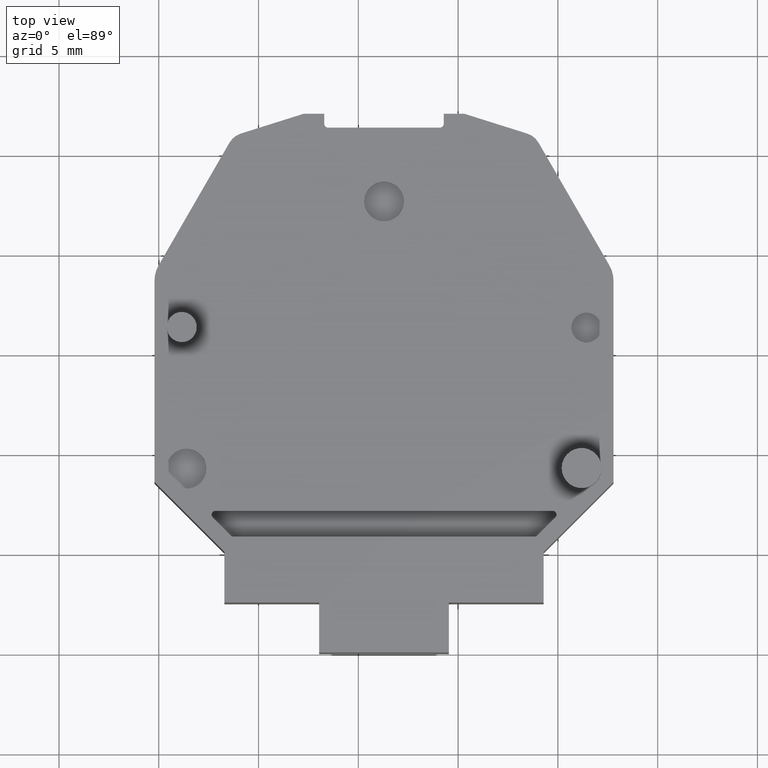
[diagram: clean part render]
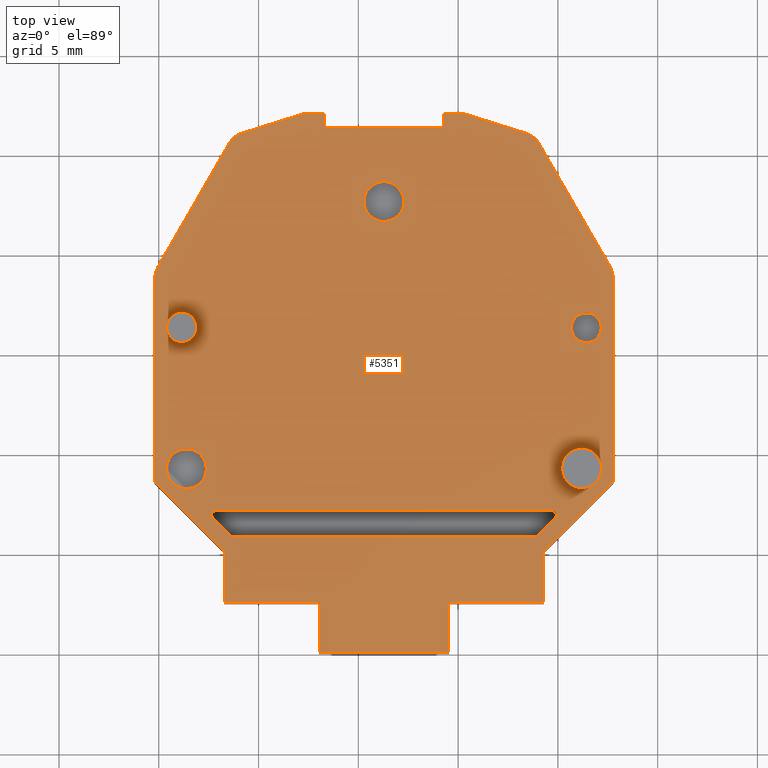
[diagram: same view with one face highlighted and labeled with its STEP entity id]
A machine part, top view. The second image highlights one B-rep face of the part: STEP entity #5351.
In plain terms, the highlighted planar face has unit normal (0, 0, 1).
Its self-contained STEP definition (entity closure, byte-faithful):
#47 = DIRECTION ( 'NONE',  ( 0.0000000000000000000, -1.000000000000000000, -0.0000000000000000000 ) ) ;
#50 = CARTESIAN_POINT ( 'NONE',  ( 301.4252887473445500, 446.2741209569410300, -25.33000000000000200 ) ) ;
#52 = LINE ( 'NONE', #56, #1726 ) ;
#53 = DIRECTION ( 'NONE',  ( -0.0000000000000000000, -0.0000000000000000000, -1.000000000000000000 ) ) ;
#56 = CARTESIAN_POINT ( 'NONE',  ( 283.2859378434519600, 448.6419330427179900, -25.33000000000000200 ) ) ;
#78 = CARTESIAN_POINT ( 'NONE',  ( 288.0359378434520700, 448.6419330427179900, -25.33000000000000200 ) ) ;
#87 = DIRECTION ( 'NONE',  ( 0.0000000000000000000, -1.000000000000000000, -0.0000000000000000000 ) ) ;
#88 = LINE ( 'NONE', #78, #1739 ) ;
#89 = LINE ( 'NONE', #133, #221 ) ;
#91 = DIRECTION ( 'NONE',  ( 1.000000000000000000, 0.0000000000000000000, -0.0000000000000000000 ) ) ;
#93 = CARTESIAN_POINT ( 'NONE',  ( 301.2859378434515100, 430.0003766282130800, -25.33000000000000200 ) ) ;
#98 = DIRECTION ( 'NONE',  ( -1.000000000000000000, 0.0000000000000000000, 0.0000000000000000000 ) ) ;
#104 = DIRECTION ( 'NONE',  ( 0.0000000000000000000, 0.0000000000000000000, -1.000000000000000000 ) ) ;
#110 = DIRECTION ( 'NONE',  ( 1.000000000000000000, 0.0000000000000000000, -0.0000000000000000000 ) ) ;
#111 = DIRECTION ( 'NONE',  ( 0.0000000000000000000, 0.0000000000000000000, -1.000000000000000000 ) ) ;
#112 = DIRECTION ( 'NONE',  ( -1.000000000000000000, 0.0000000000000000000, 0.0000000000000000000 ) ) ;
#116 = CARTESIAN_POINT ( 'NONE',  ( 298.1630294374650100, 455.0509690692700800, -25.33000000000000200 ) ) ;
#125 = DIRECTION ( 'NONE',  ( 1.000000000000000000, 0.0000000000000000000, 0.0000000000000000000 ) ) ;
#127 = LINE ( 'NONE', #93, #230 ) ;
#129 = CARTESIAN_POINT ( 'NONE',  ( 281.1465869395589700, 446.2741209569480200, -25.33000000000000200 ) ) ;
#133 = CARTESIAN_POINT ( 'NONE',  ( 301.2859378434515100, 432.5003766282130200, -25.33000000000000200 ) ) ;
#134 = LINE ( 'NONE', #141, #1753 ) ;
#138 = DIRECTION ( 'NONE',  ( 1.000000000000000000, 0.0000000000000000000, -0.0000000000000000000 ) ) ;
#141 = CARTESIAN_POINT ( 'NONE',  ( 294.2798336156394600, 457.4763382100359800, -25.33000000000000200 ) ) ;
#142 = DIRECTION ( 'NONE',  ( -1.390694383119340700E-005, -0.9999999999032984600, -0.0000000000000000000 ) ) ;
#157 = CARTESIAN_POINT ( 'NONE',  ( 301.2859378434515100, 432.5003766282130200, -25.33000000000000200 ) ) ;
#164 = AXIS2_PLACEMENT_3D ( 'NONE', #2394, #2419, #2395 ) ;
#165 = CIRCLE ( 'NONE', #172, 1.499999999999945800 ) ;
#171 = CIRCLE ( 'NONE', #164, 0.1999999999999779700 ) ;
#172 = AXIS2_PLACEMENT_3D ( 'NONE', #2412, #2387, #2400 ) ;
#174 = AXIS2_PLACEMENT_3D ( 'NONE', #116, #111, #112 ) ;
#216 = ORIENTED_EDGE ( 'NONE', *, *, #1404, .T. ) ;
#217 = ORIENTED_EDGE ( 'NONE', *, *, #1361, .T. ) ;
#219 = CIRCLE ( 'NONE', #1784, 0.9999999999872333200 ) ;
#221 = VECTOR ( 'NONE', #91, 1000.000000000000000 ) ;
#223 = CIRCLE ( 'NONE', #225, 0.7500000000004170000 ) ;
#225 = AXIS2_PLACEMENT_3D ( 'NONE', #129, #104, #98 ) ;
#227 = CIRCLE ( 'NONE', #174, 0.9999999999999453800 ) ;
#230 = VECTOR ( 'NONE', #110, 1000.000000000000000 ) ;
#241 = ORIENTED_EDGE ( 'NONE', *, *, #1358, .T. ) ;
#267 = ORIENTED_EDGE ( 'NONE', *, *, #1431, .T. ) ;
#574 = DIRECTION ( 'NONE',  ( -1.000000000000000000, 0.0000000000000000000, 0.0000000000000000000 ) ) ;
#587 = CARTESIAN_POINT ( 'NONE',  ( 282.8478802416394700, 436.8967608090039800, -25.33000000000000200 ) ) ;
#598 = DIRECTION ( 'NONE',  ( 0.0000000000000000000, 0.0000000000000000000, -1.000000000000000000 ) ) ;
#660 = DIRECTION ( 'NONE',  ( -0.0000000000000000000, -0.0000000000000000000, -1.000000000000000000 ) ) ;
#661 = DIRECTION ( 'NONE',  ( 1.000000000000000000, 0.0000000000000000000, 0.0000000000000000000 ) ) ;
#662 = DIRECTION ( 'NONE',  ( -1.000000000000000000, 0.0000000000000000000, 0.0000000000000000000 ) ) ;
#670 = CARTESIAN_POINT ( 'NONE',  ( 301.4252887473445500, 446.2741209569410300, -25.33000000000000200 ) ) ;
#687 = DIRECTION ( 'NONE',  ( 0.0000000000000000000, 0.0000000000000000000, -1.000000000000000000 ) ) ;
#696 = CARTESIAN_POINT ( 'NONE',  ( 281.1465869395589700, 446.2741209569480200, -25.33000000000000200 ) ) ;
#954 = CARTESIAN_POINT ( 'NONE',  ( 295.3058080792579900, 457.0003766282129600, -25.33000000000000200 ) ) ;
#959 = DIRECTION ( 'NONE',  ( -1.000000000000000000, -6.214135429438520400E-014, -0.0000000000000000000 ) ) ;
#995 = LINE ( 'NONE', #954, #3494 ) ;
#1014 = LINE ( 'NONE', #157, #1733 ) ;
#1076 = VECTOR ( 'NONE', #2440, 1000.000000000000000 ) ;
#1077 = AXIS2_PLACEMENT_3D ( 'NONE', #2532, #2523, #2540 ) ;
#1078 = VECTOR ( 'NONE', #2008, 1000.000000000000100 ) ;
#1082 = VECTOR ( 'NONE', #1992, 1000.000000000000000 ) ;
#1083 = AXIS2_PLACEMENT_3D ( 'NONE', #2312, #2289, #2335 ) ;
#1085 = AXIS2_PLACEMENT_3D ( 'NONE', #2455, #2504, #2490 ) ;
#1089 = VECTOR ( 'NONE', #2495, 1000.000000000000000 ) ;
#1096 = VECTOR ( 'NONE', #2020, 1000.000000000000000 ) ;
#1102 = AXIS2_PLACEMENT_3D ( 'NONE', #2506, #2507, #2511 ) ;
#1105 = VECTOR ( 'NONE', #2545, 1000.000000000000000 ) ;
#1106 = CIRCLE ( 'NONE', #1077, 0.1999999999999779700 ) ;
#1108 = VECTOR ( 'NONE', #2478, 1000.000000000000100 ) ;
#1112 = CIRCLE ( 'NONE', #1127, 0.9999999999872333200 ) ;
#1114 = AXIS2_PLACEMENT_3D ( 'NONE', #2547, #2542, #2534 ) ;
#1117 = VECTOR ( 'NONE', #2463, 1000.000000000000100 ) ;
#1119 = VECTOR ( 'NONE', #2483, 1000.000000000000000 ) ;
#1120 = CIRCLE ( 'NONE', #1085, 1.000000000000000900 ) ;
#1122 = AXIS2_PLACEMENT_3D ( 'NONE', #2520, #2521, #2526 ) ;
#1123 = CIRCLE ( 'NONE', #1125, 1.000000000000000900 ) ;
#1124 = VECTOR ( 'NONE', #2544, 1000.000000000000000 ) ;
#1125 = AXIS2_PLACEMENT_3D ( 'NONE', #2002, #2028, #2026 ) ;
#1126 = CIRCLE ( 'NONE', #1083, 0.9999999999872333200 ) ;
#1127 = AXIS2_PLACEMENT_3D ( 'NONE', #2498, #2488, #2508 ) ;
#1128 = VECTOR ( 'NONE', #1996, 1000.000000000000100 ) ;
#1129 = VECTOR ( 'NONE', #2438, 1000.000000000000100 ) ;
#1130 = VECTOR ( 'NONE', #2021, 1000.000000000000200 ) ;
#1131 = VECTOR ( 'NONE', #1978, 1000.000000000000000 ) ;
#1133 = CIRCLE ( 'NONE', #1114, 0.1999999999999779700 ) ;
#1137 = CIRCLE ( 'NONE', #1102, 0.1999999999999779700 ) ;
#1138 = CIRCLE ( 'NONE', #1122, 0.9999999999872333200 ) ;
#1221 = EDGE_CURVE ( 'NONE', #3297, #3340, #2732, .T. ) ;
#1269 = EDGE_CURVE ( 'NONE', #3350, #3374, #995, .T. ) ;
#1308 = EDGE_CURVE ( 'NONE', #4462, #3350, #4337, .T. ) ;
#1314 = EDGE_CURVE ( 'NONE', #3363, #3354, #3472, .T. ) ;
#1332 = EDGE_CURVE ( 'NONE', #4493, #4456, #1014, .T. ) ;
#1339 = EDGE_CURVE ( 'NONE', #3340, #3370, #134, .T. ) ;
#1350 = EDGE_CURVE ( 'NONE', #4495, #4493, #52, .T. ) ;
#1353 = EDGE_CURVE ( 'NONE', #4456, #4475, #88, .T. ) ;
#1355 = EDGE_CURVE ( 'NONE', #4516, #4513, #1760, .T. ) ;
#1358 = EDGE_CURVE ( 'NONE', #4474, #4459, #89, .T. ) ;
#1360 = EDGE_CURVE ( 'NONE', #4448, #4487, #223, .T. ) ;
#1361 = EDGE_CURVE ( 'NONE', #4475, #4478, #127, .T. ) ;
#1366 = EDGE_CURVE ( 'NONE', #3377, #3348, #227, .T. ) ;
#1373 = EDGE_CURVE ( 'NONE', #4469, #4453, #165, .T. ) ;
#1382 = EDGE_CURVE ( 'NONE', #4468, #4462, #171, .T. ) ;
#1388 = EDGE_CURVE ( 'NONE', #4478, #4474, #2443, .T. ) ;
#1392 = EDGE_CURVE ( 'NONE', #4476, #4499, #2430, .T. ) ;
#1395 = EDGE_CURVE ( 'NONE', #4471, #4491, #2446, .T. ) ;
#1397 = EDGE_CURVE ( 'NONE', #4447, #4458, #2439, .T. ) ;
#1398 = EDGE_CURVE ( 'NONE', #4500, #4463, #1120, .T. ) ;
#1401 = EDGE_CURVE ( 'NONE', #4514, #4486, #1112, .T. ) ;
#1402 = EDGE_CURVE ( 'NONE', #4459, #4476, #2513, .T. ) ;
#1404 = EDGE_CURVE ( 'NONE', #4499, #3354, #2480, .T. ) ;
#1407 = EDGE_CURVE ( 'NONE', #3363, #3348, #2487, .T. ) ;
#1412 = EDGE_CURVE ( 'NONE', #3370, #4483, #1137, .T. ) ;
#1414 = EDGE_CURVE ( 'NONE', #4437, #4471, #1133, .T. ) ;
#1415 = EDGE_CURVE ( 'NONE', #4491, #4447, #2479, .T. ) ;
#1416 = EDGE_CURVE ( 'NONE', #4483, #4468, #2529, .T. ) ;
#1418 = EDGE_CURVE ( 'NONE', #4458, #4482, #1106, .T. ) ;
#1420 = EDGE_CURVE ( 'NONE', #4441, #4477, #1138, .T. ) ;
#1423 = EDGE_CURVE ( 'NONE', #4443, #4554, #1123, .T. ) ;
#1424 = EDGE_CURVE ( 'NONE', #4455, #4495, #1980, .T. ) ;
#1427 = EDGE_CURVE ( 'NONE', #3377, #3297, #2023, .T. ) ;
#1431 = EDGE_CURVE ( 'NONE', #4492, #4437, #2018, .T. ) ;
#1432 = EDGE_CURVE ( 'NONE', #3374, #4463, #2025, .T. ) ;
#1433 = EDGE_CURVE ( 'NONE', #4469, #4455, #2011, .T. ) ;
#1436 = EDGE_CURVE ( 'NONE', #4500, #4453, #1986, .T. ) ;
#1450 = ORIENTED_EDGE ( 'NONE', *, *, #1366, .F. ) ;
#1452 = ORIENTED_EDGE ( 'NONE', *, *, #1353, .T. ) ;
#1453 = ORIENTED_EDGE ( 'NONE', *, *, #1412, .T. ) ;
#1454 = ORIENTED_EDGE ( 'NONE', *, *, #4960, .T. ) ;
#1455 = ORIENTED_EDGE ( 'NONE', *, *, #1339, .T. ) ;
#1456 = ORIENTED_EDGE ( 'NONE', *, *, #1407, .T. ) ;
#1457 = ORIENTED_EDGE ( 'NONE', *, *, #1382, .T. ) ;
#1459 = ORIENTED_EDGE ( 'NONE', *, *, #1436, .T. ) ;
#1460 = ORIENTED_EDGE ( 'NONE', *, *, #1221, .T. ) ;
#1461 = ORIENTED_EDGE ( 'NONE', *, *, #1360, .T. ) ;
#1462 = ORIENTED_EDGE ( 'NONE', *, *, #4957, .T. ) ;
#1463 = ORIENTED_EDGE ( 'NONE', *, *, #1402, .T. ) ;
#1464 = ORIENTED_EDGE ( 'NONE', *, *, #1416, .T. ) ;
#1465 = ORIENTED_EDGE ( 'NONE', *, *, #1398, .F. ) ;
#1467 = ORIENTED_EDGE ( 'NONE', *, *, #1388, .T. ) ;
#1468 = ORIENTED_EDGE ( 'NONE', *, *, #1350, .T. ) ;
#1469 = ORIENTED_EDGE ( 'NONE', *, *, #1269, .T. ) ;
#1471 = ORIENTED_EDGE ( 'NONE', *, *, #1332, .T. ) ;
#1472 = ORIENTED_EDGE ( 'NONE', *, *, #1314, .F. ) ;
#1473 = ORIENTED_EDGE ( 'NONE', *, *, #1392, .T. ) ;
#1475 = ORIENTED_EDGE ( 'NONE', *, *, #1308, .T. ) ;
#1477 = ORIENTED_EDGE ( 'NONE', *, *, #1355, .T. ) ;
#1480 = ORIENTED_EDGE ( 'NONE', *, *, #1427, .T. ) ;
#1481 = ORIENTED_EDGE ( 'NONE', *, *, #1432, .T. ) ;
#1515 = EDGE_LOOP ( 'NONE', ( #1454, #1461 ) ) ;
#1516 = EDGE_LOOP ( 'NONE', ( #2918, #2935, #267, #2936, #2909, #2902, #2931 ) ) ;
#1527 = EDGE_LOOP ( 'NONE', ( #1462, #1477 ) ) ;
#1533 = EDGE_LOOP ( 'NONE', ( #2865, #2941 ) ) ;
#1535 = EDGE_LOOP ( 'NONE', ( #2928, #2940, #2926, #1468, #1471, #1452, #217, #1467, #241, #1463, #1473, #216, #1472, #1456, #1450, #1480, #1460, #1455, #1453, #1464, #1457, #1475, #1469, #1481, #1465, #1459 ) ) ;
#1539 = EDGE_LOOP ( 'NONE', ( #2929, #2921 ) ) ;
#1542 = EDGE_LOOP ( 'NONE', ( #2924, #2930 ) ) ;
#1666 = VECTOR ( 'NONE', #2768, 1000.000000000000000 ) ;
#1726 = VECTOR ( 'NONE', #87, 1000.000000000000000 ) ;
#1730 = VECTOR ( 'NONE', #2453, 1000.000000000000000 ) ;
#1733 = VECTOR ( 'NONE', #138, 1000.000000000000000 ) ;
#1736 = AXIS2_PLACEMENT_3D ( 'NONE', #50, #53, #125 ) ;
#1737 = AXIS2_PLACEMENT_3D ( 'NONE', #4370, #4363, #4394 ) ;
#1739 = VECTOR ( 'NONE', #47, 1000.000000000000000 ) ;
#1753 = VECTOR ( 'NONE', #142, 1000.000000000000000 ) ;
#1760 = CIRCLE ( 'NONE', #1736, 0.7500000000004170000 ) ;
#1768 = AXIS2_PLACEMENT_3D ( 'NONE', #587, #598, #574 ) ;
#1775 = CIRCLE ( 'NONE', #1812, 0.7500000000004170000 ) ;
#1784 = AXIS2_PLACEMENT_3D ( 'NONE', #2379, #2362, #2347 ) ;
#1786 = CIRCLE ( 'NONE', #1768, 0.1999999999999779700 ) ;
#1801 = CIRCLE ( 'NONE', #1809, 0.7500000000004170000 ) ;
#1809 = AXIS2_PLACEMENT_3D ( 'NONE', #696, #687, #662 ) ;
#1812 = AXIS2_PLACEMENT_3D ( 'NONE', #670, #660, #661 ) ;
#1978 = DIRECTION ( 'NONE',  ( 1.000000000000000000, 0.0000000000000000000, -0.0000000000000000000 ) ) ;
#1979 = CARTESIAN_POINT ( 'NONE',  ( 279.7859378434514500, 448.6419330427179900, -25.33000000000000200 ) ) ;
#1980 = LINE ( 'NONE', #2019, #1128 ) ;
#1986 = LINE ( 'NONE', #2015, #1096 ) ;
#1992 = DIRECTION ( 'NONE',  ( 0.0000000000000000000, -1.000000000000000000, -0.0000000000000000000 ) ) ;
#1994 = CARTESIAN_POINT ( 'NONE',  ( 298.4637352369695100, 456.0046860200179700, -25.33000000000000200 ) ) ;
#1996 = DIRECTION ( 'NONE',  ( 0.7071067811865474600, -0.7071067811865474600, 0.0000000000000000000 ) ) ;
#2001 = CARTESIAN_POINT ( 'NONE',  ( 301.2859378434515100, 437.0967608090040200, -25.33000000000000200 ) ) ;
#2002 = CARTESIAN_POINT ( 'NONE',  ( 291.2859378434519600, 452.5954399154260800, -25.33000000000000200 ) ) ;
#2008 = DIRECTION ( 'NONE',  ( -0.9537169507481838600, 0.3007057995044094500, 0.0000000000000000000 ) ) ;
#2010 = CARTESIAN_POINT ( 'NONE',  ( 287.2660676076465100, 457.0003766282129600, -25.33000000000000200 ) ) ;
#2011 = LINE ( 'NONE', #1979, #1082 ) ;
#2015 = CARTESIAN_POINT ( 'NONE',  ( 283.5428208456534700, 455.5509690692699700, -25.33000000000000200 ) ) ;
#2018 = LINE ( 'NONE', #2001, #1131 ) ;
#2019 = CARTESIAN_POINT ( 'NONE',  ( 279.7859378434514500, 438.5444896448189500, -25.33000000000000200 ) ) ;
#2020 = DIRECTION ( 'NONE',  ( -0.5000000000000030000, -0.8660254037844369300, 0.0000000000000000000 ) ) ;
#2021 = DIRECTION ( 'NONE',  ( -0.9537169507482248200, -0.3007057995042796100, 0.0000000000000000000 ) ) ;
#2023 = LINE ( 'NONE', #1994, #1078 ) ;
#2025 = LINE ( 'NONE', #2010, #1130 ) ;
#2026 = DIRECTION ( 'NONE',  ( 1.000000000000000000, 0.0000000000000000000, 0.0000000000000000000 ) ) ;
#2028 = DIRECTION ( 'NONE',  ( -0.0000000000000000000, -0.0000000000000000000, -1.000000000000000000 ) ) ;
#2076 = CARTESIAN_POINT ( 'NONE',  ( 295.3058080792579900, 457.0003766282129600, -25.33000000000000200 ) ) ;
#2098 = CARTESIAN_POINT ( 'NONE',  ( 302.5849759491280200, 449.3919330427179400, -25.33000000000000200 ) ) ;
#2103 = CARTESIAN_POINT ( 'NONE',  ( 298.4637352369694600, 456.0046860200179700, -25.33000000000000200 ) ) ;
#2109 = CARTESIAN_POINT ( 'NONE',  ( 294.2798200604076400, 456.5016285961286300, -25.33000000000000200 ) ) ;
#2110 = CARTESIAN_POINT ( 'NONE',  ( 288.2920486904610600, 457.0003766282128500, -25.33000000000000200 ) ) ;
#2117 = CARTESIAN_POINT ( 'NONE',  ( 294.2798269964685000, 457.0003766282129000, -25.33000000000000200 ) ) ;
#2119 = CARTESIAN_POINT ( 'NONE',  ( 299.0290548412494900, 455.5509690692699700, -25.33000000000000200 ) ) ;
#2139 = CARTESIAN_POINT ( 'NONE',  ( 302.7859378434515600, 448.6419330427179900, -25.33000000000000200 ) ) ;
#2140 = CARTESIAN_POINT ( 'NONE',  ( 287.2660676076465100, 457.0003766282126200, -25.33000000000000200 ) ) ;
#2223 = CARTESIAN_POINT ( 'NONE',  ( 279.7859378434514500, 448.6419330427179900, -25.33000000000000200 ) ) ;
#2227 = CARTESIAN_POINT ( 'NONE',  ( 281.8965869395593700, 446.2741209569480200, -25.33000000000000200 ) ) ;
#2228 = CARTESIAN_POINT ( 'NONE',  ( 300.1859378434722900, 439.2072313446179800, -25.33000000000000200 ) ) ;
#2232 = CARTESIAN_POINT ( 'NONE',  ( 294.5359378434520200, 430.0003766282130800, -25.33000000000000200 ) ) ;
#2235 = CARTESIAN_POINT ( 'NONE',  ( 294.0798200604269800, 456.3016313775178800, -25.33000000000000200 ) ) ;
#2236 = CARTESIAN_POINT ( 'NONE',  ( 280.3965869395585200, 446.2741209569480200, -25.33000000000000200 ) ) ;
#2237 = CARTESIAN_POINT ( 'NONE',  ( 282.7064588854023600, 436.7553394527663500, -25.33000000000000200 ) ) ;
#2238 = CARTESIAN_POINT ( 'NONE',  ( 283.6614217099555000, 435.8003766282129700, -25.33000000000000200 ) ) ;
#2239 = CARTESIAN_POINT ( 'NONE',  ( 279.7859378434514500, 438.5444896448189500, -25.33000000000000200 ) ) ;
#2240 = CARTESIAN_POINT ( 'NONE',  ( 302.1859378434467700, 439.2072313446179800, -25.33000000000000200 ) ) ;
#2241 = CARTESIAN_POINT ( 'NONE',  ( 294.5359378434520200, 432.5003766282130200, -25.33000000000000200 ) ) ;
#2244 = CARTESIAN_POINT ( 'NONE',  ( 282.6478802416394800, 436.8967608090039800, -25.33000000000000200 ) ) ;
#2247 = CARTESIAN_POINT ( 'NONE',  ( 299.2859378434519600, 435.0444896448179300, -25.33000000000000200 ) ) ;
#2249 = CARTESIAN_POINT ( 'NONE',  ( 299.8654168015015700, 436.7553394527661200, -25.33000000000000200 ) ) ;
#2251 = CARTESIAN_POINT ( 'NONE',  ( 298.9104539769480200, 435.8003766282129700, -25.33000000000000200 ) ) ;
#2252 = CARTESIAN_POINT ( 'NONE',  ( 282.8478802416394700, 437.0967608090040200, -25.33000000000000200 ) ) ;
#2253 = CARTESIAN_POINT ( 'NONE',  ( 283.2859378434519600, 432.5003766282130200, -25.33000000000000200 ) ) ;
#2257 = CARTESIAN_POINT ( 'NONE',  ( 288.4920486904611000, 456.3016313775170800, -25.33000000000000200 ) ) ;
#2261 = CARTESIAN_POINT ( 'NONE',  ( 284.1081404499333900, 456.0046860200182000, -25.33000000000000200 ) ) ;
#2262 = CARTESIAN_POINT ( 'NONE',  ( 283.5428208456533000, 455.5509690692700200, -25.33000000000000200 ) ) ;
#2263 = CARTESIAN_POINT ( 'NONE',  ( 282.3859378434512500, 439.2072313446219600, -25.33000000000000200 ) ) ;
#2266 = CARTESIAN_POINT ( 'NONE',  ( 283.2859378434519600, 435.0444896448184400, -25.33000000000000200 ) ) ;
#2267 = CARTESIAN_POINT ( 'NONE',  ( 288.0359378434520700, 432.5003766282130200, -25.33000000000000200 ) ) ;
#2270 = CARTESIAN_POINT ( 'NONE',  ( 302.7859378434515600, 438.5444896448179900, -25.33000000000000200 ) ) ;
#2273 = CARTESIAN_POINT ( 'NONE',  ( 299.2859378434519600, 432.5003766282130200, -25.33000000000000200 ) ) ;
#2275 = CARTESIAN_POINT ( 'NONE',  ( 290.2859378434519600, 452.5954399154260800, -25.33000000000000200 ) ) ;
#2276 = CARTESIAN_POINT ( 'NONE',  ( 279.9868997377750500, 449.3919330427179400, -25.33000000000000200 ) ) ;
#2279 = CARTESIAN_POINT ( 'NONE',  ( 288.2920486904610600, 456.5016313775170100, -25.33000000000000200 ) ) ;
#2283 = CARTESIAN_POINT ( 'NONE',  ( 288.0359378434520700, 430.0003766282130800, -25.33000000000000200 ) ) ;
#2284 = CARTESIAN_POINT ( 'NONE',  ( 299.7239954452639900, 437.0967608090040200, -25.33000000000000200 ) ) ;
#2286 = CARTESIAN_POINT ( 'NONE',  ( 280.3859378434767700, 439.2072313446219600, -25.33000000000000200 ) ) ;
#2289 = DIRECTION ( 'NONE',  ( -0.0000000000000000000, -0.0000000000000000000, -1.000000000000000000 ) ) ;
#2312 = CARTESIAN_POINT ( 'NONE',  ( 281.3859378434639800, 439.2072313446219600, -25.33000000000000200 ) ) ;
#2325 = CARTESIAN_POINT ( 'NONE',  ( 292.2859378434519600, 452.5954399154260800, -25.33000000000000200 ) ) ;
#2328 = CARTESIAN_POINT ( 'NONE',  ( 302.1752887473449500, 446.2741209569410300, -25.33000000000000200 ) ) ;
#2330 = CARTESIAN_POINT ( 'NONE',  ( 300.6752887473441000, 446.2741209569410300, -25.33000000000000200 ) ) ;
#2335 = DIRECTION ( 'NONE',  ( 1.000000000000000000, 0.0000000000000000000, 0.0000000000000000000 ) ) ;
#2347 = DIRECTION ( 'NONE',  ( -1.000000000000000000, 0.0000000000000000000, 0.0000000000000000000 ) ) ;
#2362 = DIRECTION ( 'NONE',  ( 0.0000000000000000000, 0.0000000000000000000, -1.000000000000000000 ) ) ;
#2379 = CARTESIAN_POINT ( 'NONE',  ( 301.1859378434595600, 439.2072313446179800, -25.33000000000000200 ) ) ;
#2387 = DIRECTION ( 'NONE',  ( 0.0000000000000000000, 0.0000000000000000000, -1.000000000000000000 ) ) ;
#2394 = CARTESIAN_POINT ( 'NONE',  ( 288.4920486904611000, 456.5016313775170100, -25.33000000000000200 ) ) ;
#2395 = DIRECTION ( 'NONE',  ( -1.000000000000000000, 0.0000000000000000000, 0.0000000000000000000 ) ) ;
#2400 = DIRECTION ( 'NONE',  ( -1.000000000000000000, 0.0000000000000000000, 0.0000000000000000000 ) ) ;
#2412 = CARTESIAN_POINT ( 'NONE',  ( 281.2859378434514500, 448.6419330427179900, -25.33000000000000200 ) ) ;
#2419 = DIRECTION ( 'NONE',  ( 0.0000000000000000000, 0.0000000000000000000, -1.000000000000000000 ) ) ;
#2430 = LINE ( 'NONE', #2458, #1076 ) ;
#2432 = CARTESIAN_POINT ( 'NONE',  ( 299.8654168015014500, 436.7553394527660100, -25.33000000000000200 ) ) ;
#2438 = DIRECTION ( 'NONE',  ( -0.7071067811865474600, 0.7071067811865474600, 0.0000000000000000000 ) ) ;
#2439 = LINE ( 'NONE', #2447, #1129 ) ;
#2440 = DIRECTION ( 'NONE',  ( 0.7071067811864970600, 0.7071067811865979800, 0.0000000000000000000 ) ) ;
#2442 = CARTESIAN_POINT ( 'NONE',  ( 294.5359378434520200, 448.6419330427179900, -25.33000000000000200 ) ) ;
#2443 = LINE ( 'NONE', #2442, #1730 ) ;
#2446 = LINE ( 'NONE', #2432, #1117 ) ;
#2447 = CARTESIAN_POINT ( 'NONE',  ( 283.6614217099555000, 435.8003766282129700, -25.33000000000000200 ) ) ;
#2453 = DIRECTION ( 'NONE',  ( -0.0000000000000000000, 1.000000000000000000, 0.0000000000000000000 ) ) ;
#2455 = CARTESIAN_POINT ( 'NONE',  ( 284.4088462494376000, 455.0509690692700800, -25.33000000000000200 ) ) ;
#2458 = CARTESIAN_POINT ( 'NONE',  ( 299.2859378434519600, 435.0444896448179300, -25.33000000000000200 ) ) ;
#2463 = DIRECTION ( 'NONE',  ( -0.7071067811866913500, -0.7071067811864036900, 0.0000000000000000000 ) ) ;
#2476 = CARTESIAN_POINT ( 'NONE',  ( 299.2859378434519600, 448.6419330427179900, -25.33000000000000200 ) ) ;
#2478 = DIRECTION ( 'NONE',  ( -0.5000000000000087700, 0.8660254037844334900, 0.0000000000000000000 ) ) ;
#2479 = LINE ( 'NONE', #2518, #1105 ) ;
#2480 = LINE ( 'NONE', #2481, #1119 ) ;
#2481 = CARTESIAN_POINT ( 'NONE',  ( 302.7859378434515600, 448.6419330427179900, -25.33000000000000200 ) ) ;
#2483 = DIRECTION ( 'NONE',  ( -0.0000000000000000000, 1.000000000000000000, 0.0000000000000000000 ) ) ;
#2487 = LINE ( 'NONE', #2492, #1108 ) ;
#2488 = DIRECTION ( 'NONE',  ( -0.0000000000000000000, -0.0000000000000000000, -1.000000000000000000 ) ) ;
#2490 = DIRECTION ( 'NONE',  ( -1.000000000000000000, 0.0000000000000000000, 0.0000000000000000000 ) ) ;
#2492 = CARTESIAN_POINT ( 'NONE',  ( 302.5849759491279700, 449.3919330427179900, -25.33000000000000200 ) ) ;
#2495 = DIRECTION ( 'NONE',  ( -0.0000000000000000000, 1.000000000000000000, 0.0000000000000000000 ) ) ;
#2498 = CARTESIAN_POINT ( 'NONE',  ( 281.3859378434639800, 439.2072313446219600, -25.33000000000000200 ) ) ;
#2504 = DIRECTION ( 'NONE',  ( 0.0000000000000000000, 0.0000000000000000000, -1.000000000000000000 ) ) ;
#2506 = CARTESIAN_POINT ( 'NONE',  ( 294.0798200604269800, 456.5016313775170100, -25.33000000000000200 ) ) ;
#2507 = DIRECTION ( 'NONE',  ( 0.0000000000000000000, 0.0000000000000000000, -1.000000000000000000 ) ) ;
#2508 = DIRECTION ( 'NONE',  ( 1.000000000000000000, 0.0000000000000000000, 0.0000000000000000000 ) ) ;
#2511 = DIRECTION ( 'NONE',  ( -1.000000000000000000, 0.0000000000000000000, 0.0000000000000000000 ) ) ;
#2513 = LINE ( 'NONE', #2476, #1089 ) ;
#2518 = CARTESIAN_POINT ( 'NONE',  ( 301.2859378434515100, 435.8003766282129700, -25.33000000000000200 ) ) ;
#2520 = CARTESIAN_POINT ( 'NONE',  ( 301.1859378434595600, 439.2072313446179800, -25.33000000000000200 ) ) ;
#2521 = DIRECTION ( 'NONE',  ( 0.0000000000000000000, 0.0000000000000000000, -1.000000000000000000 ) ) ;
#2523 = DIRECTION ( 'NONE',  ( 0.0000000000000000000, 0.0000000000000000000, -1.000000000000000000 ) ) ;
#2526 = DIRECTION ( 'NONE',  ( -1.000000000000000000, 0.0000000000000000000, 0.0000000000000000000 ) ) ;
#2529 = LINE ( 'NONE', #2546, #1124 ) ;
#2532 = CARTESIAN_POINT ( 'NONE',  ( 282.8478802416394700, 436.8967608090039800, -25.33000000000000200 ) ) ;
#2534 = DIRECTION ( 'NONE',  ( -1.000000000000000000, 0.0000000000000000000, 0.0000000000000000000 ) ) ;
#2540 = DIRECTION ( 'NONE',  ( -1.000000000000000000, 0.0000000000000000000, 0.0000000000000000000 ) ) ;
#2542 = DIRECTION ( 'NONE',  ( 0.0000000000000000000, 0.0000000000000000000, -1.000000000000000000 ) ) ;
#2544 = DIRECTION ( 'NONE',  ( -1.000000000000000000, -0.0000000000000000000, 0.0000000000000000000 ) ) ;
#2545 = DIRECTION ( 'NONE',  ( -1.000000000000000000, -0.0000000000000000000, 0.0000000000000000000 ) ) ;
#2546 = CARTESIAN_POINT ( 'NONE',  ( 301.2859378434515100, 456.3016313775170800, -25.33000000000000200 ) ) ;
#2547 = CARTESIAN_POINT ( 'NONE',  ( 299.7239954452639900, 436.8967608090039800, -25.33000000000000200 ) ) ;
#2732 = LINE ( 'NONE', #2767, #1666 ) ;
#2767 = CARTESIAN_POINT ( 'NONE',  ( 295.3058080792579900, 457.0003766282129600, -25.33000000000000200 ) ) ;
#2768 = DIRECTION ( 'NONE',  ( -1.000000000000000000, -6.214135429438520400E-014, -0.0000000000000000000 ) ) ;
#2865 = ORIENTED_EDGE ( 'NONE', *, *, #5367, .T. ) ;
#2902 = ORIENTED_EDGE ( 'NONE', *, *, #1415, .T. ) ;
#2909 = ORIENTED_EDGE ( 'NONE', *, *, #1395, .T. ) ;
#2918 = ORIENTED_EDGE ( 'NONE', *, *, #1418, .T. ) ;
#2921 = ORIENTED_EDGE ( 'NONE', *, *, #1420, .T. ) ;
#2924 = ORIENTED_EDGE ( 'NONE', *, *, #4885, .T. ) ;
#2926 = ORIENTED_EDGE ( 'NONE', *, *, #1424, .T. ) ;
#2928 = ORIENTED_EDGE ( 'NONE', *, *, #1373, .F. ) ;
#2929 = ORIENTED_EDGE ( 'NONE', *, *, #4903, .T. ) ;
#2930 = ORIENTED_EDGE ( 'NONE', *, *, #1401, .T. ) ;
#2931 = ORIENTED_EDGE ( 'NONE', *, *, #1397, .T. ) ;
#2935 = ORIENTED_EDGE ( 'NONE', *, *, #4918, .T. ) ;
#2936 = ORIENTED_EDGE ( 'NONE', *, *, #1414, .T. ) ;
#2940 = ORIENTED_EDGE ( 'NONE', *, *, #1433, .T. ) ;
#2941 = ORIENTED_EDGE ( 'NONE', *, *, #1423, .T. ) ;
#2963 = CARTESIAN_POINT ( 'NONE',  ( 291.2859378434519600, 452.5954399154260800, -25.33000000000000200 ) ) ;
#2974 = DIRECTION ( 'NONE',  ( -0.0000000000000000000, -0.0000000000000000000, -1.000000000000000000 ) ) ;
#2982 = DIRECTION ( 'NONE',  ( 1.000000000000000000, 0.0000000000000000000, 0.0000000000000000000 ) ) ;
#3145 = FACE_OUTER_BOUND ( 'NONE', #1535, .T. ) ;
#3146 = FACE_BOUND ( 'NONE', #1527, .T. ) ;
#3147 = CARTESIAN_POINT ( 'NONE',  ( 301.2859378434515100, 448.6419330427179900, -25.33000000000000200 ) ) ;
#3151 = FACE_BOUND ( 'NONE', #1539, .T. ) ;
#3159 = DIRECTION ( 'NONE',  ( 1.000000000000000000, 0.0000000000000000000, -0.0000000000000000000 ) ) ;
#3164 = FACE_BOUND ( 'NONE', #1516, .T. ) ;
#3184 = FACE_BOUND ( 'NONE', #1515, .T. ) ;
#3186 = FACE_BOUND ( 'NONE', #1533, .T. ) ;
#3189 = PLANE ( 'NONE',  #5135 ) ;
#3191 = DIRECTION ( 'NONE',  ( 0.0000000000000000000, 0.0000000000000000000, 1.000000000000000000 ) ) ;
#3192 = FACE_BOUND ( 'NONE', #1542, .T. ) ;
#3297 = VERTEX_POINT ( 'NONE', #2076 ) ;
#3340 = VERTEX_POINT ( 'NONE', #2117 ) ;
#3348 = VERTEX_POINT ( 'NONE', #2119 ) ;
#3350 = VERTEX_POINT ( 'NONE', #2110 ) ;
#3354 = VERTEX_POINT ( 'NONE', #2139 ) ;
#3363 = VERTEX_POINT ( 'NONE', #2098 ) ;
#3370 = VERTEX_POINT ( 'NONE', #2109 ) ;
#3374 = VERTEX_POINT ( 'NONE', #2140 ) ;
#3377 = VERTEX_POINT ( 'NONE', #2103 ) ;
#3472 = CIRCLE ( 'NONE', #1737, 1.500000000000001300 ) ;
#3494 = VECTOR ( 'NONE', #959, 1000.000000000000000 ) ;
#3497 = VECTOR ( 'NONE', #4393, 1000.000000000000000 ) ;
#4337 = LINE ( 'NONE', #4399, #3497 ) ;
#4363 = DIRECTION ( 'NONE',  ( 0.0000000000000000000, 0.0000000000000000000, -1.000000000000000000 ) ) ;
#4370 = CARTESIAN_POINT ( 'NONE',  ( 301.2859378434515100, 448.6419330427179900, -25.33000000000000200 ) ) ;
#4393 = DIRECTION ( 'NONE',  ( 5.695163856378221100E-014, 1.000000000000000000, -0.0000000000000000000 ) ) ;
#4394 = DIRECTION ( 'NONE',  ( -1.000000000000000000, 0.0000000000000000000, 0.0000000000000000000 ) ) ;
#4399 = CARTESIAN_POINT ( 'NONE',  ( 288.2920486904610600, 457.4763382100359800, -25.33000000000000200 ) ) ;
#4437 = VERTEX_POINT ( 'NONE', #2284 ) ;
#4441 = VERTEX_POINT ( 'NONE', #2240 ) ;
#4443 = VERTEX_POINT ( 'NONE', #2275 ) ;
#4447 = VERTEX_POINT ( 'NONE', #2238 ) ;
#4448 = VERTEX_POINT ( 'NONE', #2227 ) ;
#4453 = VERTEX_POINT ( 'NONE', #2276 ) ;
#4455 = VERTEX_POINT ( 'NONE', #2239 ) ;
#4456 = VERTEX_POINT ( 'NONE', #2267 ) ;
#4458 = VERTEX_POINT ( 'NONE', #2237 ) ;
#4459 = VERTEX_POINT ( 'NONE', #2273 ) ;
#4462 = VERTEX_POINT ( 'NONE', #2279 ) ;
#4463 = VERTEX_POINT ( 'NONE', #2261 ) ;
#4468 = VERTEX_POINT ( 'NONE', #2257 ) ;
#4469 = VERTEX_POINT ( 'NONE', #2223 ) ;
#4471 = VERTEX_POINT ( 'NONE', #2249 ) ;
#4474 = VERTEX_POINT ( 'NONE', #2241 ) ;
#4475 = VERTEX_POINT ( 'NONE', #2283 ) ;
#4476 = VERTEX_POINT ( 'NONE', #2247 ) ;
#4477 = VERTEX_POINT ( 'NONE', #2228 ) ;
#4478 = VERTEX_POINT ( 'NONE', #2232 ) ;
#4482 = VERTEX_POINT ( 'NONE', #2244 ) ;
#4483 = VERTEX_POINT ( 'NONE', #2235 ) ;
#4486 = VERTEX_POINT ( 'NONE', #2263 ) ;
#4487 = VERTEX_POINT ( 'NONE', #2236 ) ;
#4491 = VERTEX_POINT ( 'NONE', #2251 ) ;
#4492 = VERTEX_POINT ( 'NONE', #2252 ) ;
#4493 = VERTEX_POINT ( 'NONE', #2253 ) ;
#4495 = VERTEX_POINT ( 'NONE', #2266 ) ;
#4499 = VERTEX_POINT ( 'NONE', #2270 ) ;
#4500 = VERTEX_POINT ( 'NONE', #2262 ) ;
#4513 = VERTEX_POINT ( 'NONE', #2328 ) ;
#4514 = VERTEX_POINT ( 'NONE', #2286 ) ;
#4516 = VERTEX_POINT ( 'NONE', #2330 ) ;
#4554 = VERTEX_POINT ( 'NONE', #2325 ) ;
#4885 = EDGE_CURVE ( 'NONE', #4486, #4514, #1126, .T. ) ;
#4903 = EDGE_CURVE ( 'NONE', #4477, #4441, #219, .T. ) ;
#4918 = EDGE_CURVE ( 'NONE', #4482, #4492, #1786, .T. ) ;
#4957 = EDGE_CURVE ( 'NONE', #4513, #4516, #1775, .T. ) ;
#4960 = EDGE_CURVE ( 'NONE', #4487, #4448, #1801, .T. ) ;
#5135 = AXIS2_PLACEMENT_3D ( 'NONE', #3147, #3191, #3159 ) ;
#5175 = AXIS2_PLACEMENT_3D ( 'NONE', #2963, #2974, #2982 ) ;
#5179 = CIRCLE ( 'NONE', #5175, 1.000000000000000900 ) ;
#5351 = ADVANCED_FACE ( 'NONE', ( #3164, #3151, #3186, #3192, #3145, #3146, #3184 ), #3189, .T. ) ;
#5367 = EDGE_CURVE ( 'NONE', #4554, #4443, #5179, .T. ) ;